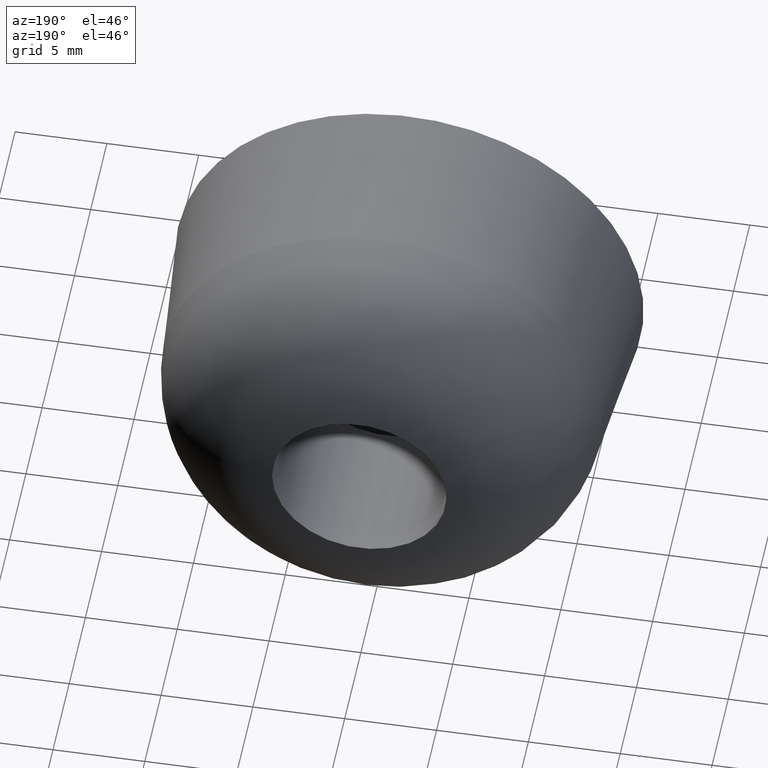
[diagram: clean part render]
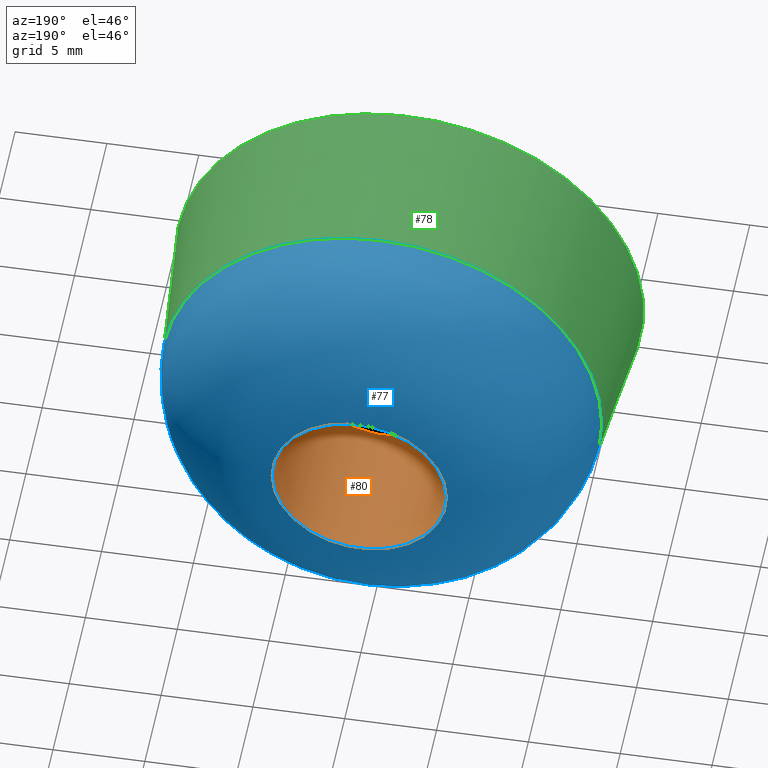
[diagram: same view with three faces highlighted in distinct colors, each labeled with its STEP entity id]
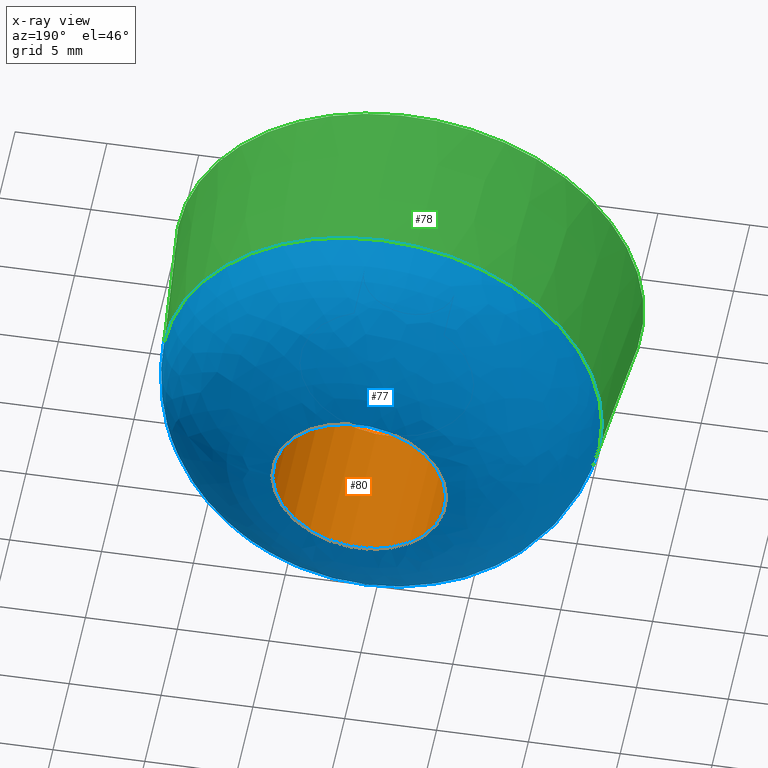
[diagram: x-ray of the same camera — body ghosted, the three highlighted faces saturated]
A machine part, auxiliary view with three faces highlighted in distinct colors.
The next image is the same camera in x-ray (body ghosted, the three faces saturated) — at least one of them is partly hidden behind the body in this view.
Their STEP definitions:

[orange] entity #80 — the highlighted cylindrical surface (bore or boss wall) has radius 4.75 mm, axis along (0, -1, 0).
#15=CYLINDRICAL_SURFACE('',#92,4.75);
#21=FACE_BOUND('',#37,.T.);
#28=FACE_OUTER_BOUND('',#36,.T.);
#36=EDGE_LOOP('',(#70));
#37=EDGE_LOOP('',(#71));
#44=CIRCLE('',#86,4.75);
#46=CIRCLE('',#90,4.75);
#50=VERTEX_POINT('',#150);
#52=VERTEX_POINT('',#159);
#57=EDGE_CURVE('',#50,#50,#44,.T.);
#59=EDGE_CURVE('',#52,#52,#46,.T.);
#70=ORIENTED_EDGE('',*,*,#57,.F.);
#71=ORIENTED_EDGE('',*,*,#59,.T.);
#80=ADVANCED_FACE('',(#28,#21),#15,.F.);
#86=AXIS2_PLACEMENT_3D('',#154,#100,#101);
#90=AXIS2_PLACEMENT_3D('',#160,#108,#109);
#92=AXIS2_PLACEMENT_3D('',#163,#112,#113);
#100=DIRECTION('center_axis',(5.0368537706867E-17,-1.,0.));
#101=DIRECTION('ref_axis',(1.,0.,0.));
#108=DIRECTION('center_axis',(5.0368537706867E-17,-1.,0.));
#109=DIRECTION('ref_axis',(1.,5.0368537706867E-17,0.));
#112=DIRECTION('center_axis',(5.0368537706867E-17,-1.,0.));
#113=DIRECTION('ref_axis',(1.,0.,0.));
#150=CARTESIAN_POINT('',(-4.75,15.5,-1.23259516440783E-31));
#154=CARTESIAN_POINT('Origin',(-7.80712334456438E-16,15.5,0.));
#159=CARTESIAN_POINT('',(4.75,7.,0.));
#160=CARTESIAN_POINT('Origin',(-3.52579763948069E-16,7.,0.));
#163=CARTESIAN_POINT('Origin',(-5.66646049202253E-16,11.25,0.));

[blue] entity #77 — the highlighted face is a freeform B-spline surface patch.
#25=FACE_OUTER_BOUND('',#31,.T.);
#31=EDGE_LOOP('',(#62,#63,#64,#65));
#42=(
BOUNDED_CURVE()
B_SPLINE_CURVE(2,(#151,#152,#153),.UNSPECIFIED.,.F.,.F.)
B_SPLINE_CURVE_WITH_KNOTS((3,3),(0.0868982610506254,1.54070594691769),
 .UNSPECIFIED.)
CURVE()
GEOMETRIC_REPRESENTATION_ITEM()
RATIONAL_B_SPLINE_CURVE((1.,0.747235560490562,1.))
REPRESENTATION_ITEM('')
);
#43=CIRCLE('',#85,11.9960566161482);
#44=CIRCLE('',#86,4.75);
#49=VERTEX_POINT('',#148);
#50=VERTEX_POINT('',#150);
#55=EDGE_CURVE('',#49,#49,#43,.T.);
#56=EDGE_CURVE('',#49,#50,#42,.T.);
#57=EDGE_CURVE('',#50,#50,#44,.T.);
#62=ORIENTED_EDGE('',*,*,#55,.T.);
#63=ORIENTED_EDGE('',*,*,#56,.T.);
#64=ORIENTED_EDGE('',*,*,#57,.T.);
#65=ORIENTED_EDGE('',*,*,#56,.F.);
#76=(
BOUNDED_SURFACE()
B_SPLINE_SURFACE(2,2,((#121,#122,#123,#124,#125,#126,#127,#128,#129),(#130,
#131,#132,#133,#134,#135,#136,#137,#138),(#139,#140,#141,#142,#143,#144,
#145,#146,#147)),.UNSPECIFIED.,.F.,.T.,.F.)
B_SPLINE_SURFACE_WITH_KNOTS((3,3),(3,2,2,2,3),(-1.54070594691769,-0.0868982610506254),
(-3.14159265358979,-1.5707963267949,0.,1.5707963267949,3.14159265358979),
 .UNSPECIFIED.)
GEOMETRIC_REPRESENTATION_ITEM()
RATIONAL_B_SPLINE_SURFACE(((1.,0.707106781186548,1.,0.707106781186548,1.,
0.707106781186548,1.,0.707106781186548,1.),(0.747235560490562,0.528375331966607,
0.747235560490562,0.528375331966607,0.747235560490562,0.528375331966607,
0.747235560490562,0.528375331966607,0.747235560490562),(1.,0.707106781186548,
1.,0.707106781186548,1.,0.707106781186548,1.,0.707106781186548,1.)))
REPRESENTATION_ITEM('')
SURFACE()
);
#77=ADVANCED_FACE('',(#25),#76,.T.);
#85=AXIS2_PLACEMENT_3D('',#149,#98,#99);
#86=AXIS2_PLACEMENT_3D('',#154,#100,#101);
#98=DIRECTION('center_axis',(-5.06627560966057E-49,1.,4.13692798053113E-33));
#99=DIRECTION('ref_axis',(1.,0.,1.22464679914735E-16));
#100=DIRECTION('center_axis',(5.0368537706867E-17,-1.,0.));
#101=DIRECTION('ref_axis',(1.,0.,0.));
#121=CARTESIAN_POINT('Ctrl Pts',(-4.75,15.5,-5.81707229594993E-16));
#122=CARTESIAN_POINT('Ctrl Pts',(-4.75,15.5,4.75));
#123=CARTESIAN_POINT('Ctrl Pts',(-9.84826537972101E-16,15.5,4.75));
#124=CARTESIAN_POINT('Ctrl Pts',(4.75,15.5,4.75));
#125=CARTESIAN_POINT('Ctrl Pts',(4.75,15.5,5.81707229594993E-16));
#126=CARTESIAN_POINT('Ctrl Pts',(4.75,15.5,-4.75));
#127=CARTESIAN_POINT('Ctrl Pts',(1.78587921217885E-16,15.5,-4.75));
#128=CARTESIAN_POINT('Ctrl Pts',(-4.75,15.5,-4.75));
#129=CARTESIAN_POINT('Ctrl Pts',(-4.75,15.5,-5.81707229594993E-16));
#130=CARTESIAN_POINT('Ctrl Pts',(-11.4171589277173,15.2993220848411,-1.39819871361856E-15));
#131=CARTESIAN_POINT('Ctrl Pts',(-11.4171589277173,15.2993220848411,11.4171589277173));
#132=CARTESIAN_POINT('Ctrl Pts',(-1.80131802199567E-15,15.2993220848411,
11.4171589277173));
#133=CARTESIAN_POINT('Ctrl Pts',(11.4171589277173,15.2993220848411,11.4171589277173));
#134=CARTESIAN_POINT('Ctrl Pts',(11.4171589277173,15.2993220848411,1.39819871361856E-15));
#135=CARTESIAN_POINT('Ctrl Pts',(11.4171589277173,15.2993220848411,-11.4171589277173));
#136=CARTESIAN_POINT('Ctrl Pts',(9.95079405241451E-16,15.2993220848411,
-11.4171589277173));
#137=CARTESIAN_POINT('Ctrl Pts',(-11.4171589277173,15.2993220848411,-11.4171589277173));
#138=CARTESIAN_POINT('Ctrl Pts',(-11.4171589277173,15.2993220848411,-1.39819871361856E-15));
#139=CARTESIAN_POINT('Ctrl Pts',(-11.9960566161482,8.65431213305011,-1.46909323373563E-15));
#140=CARTESIAN_POINT('Ctrl Pts',(-11.9960566161482,8.65431213305011,11.9960566161482));
#141=CARTESIAN_POINT('Ctrl Pts',(-1.87221254211274E-15,8.65431213305011,
11.9960566161482));
#142=CARTESIAN_POINT('Ctrl Pts',(11.9960566161482,8.65431213305011,11.9960566161482));
#143=CARTESIAN_POINT('Ctrl Pts',(11.9960566161482,8.65431213305011,1.46909323373563E-15));
#144=CARTESIAN_POINT('Ctrl Pts',(11.9960566161482,8.65431213305011,-11.9960566161482));
#145=CARTESIAN_POINT('Ctrl Pts',(1.06597392535852E-15,8.65431213305011,
-11.9960566161482));
#146=CARTESIAN_POINT('Ctrl Pts',(-11.9960566161482,8.65431213305011,-11.9960566161482));
#147=CARTESIAN_POINT('Ctrl Pts',(-11.9960566161482,8.65431213305011,-1.46909323373563E-15));
#148=CARTESIAN_POINT('',(-11.9960566161482,8.65431213305011,-2.46519032881566E-31));
#149=CARTESIAN_POINT('Origin',(-4.03119308377108E-16,8.65431213305011,2.69279684597884E-33));
#150=CARTESIAN_POINT('',(-4.75,15.5,-1.23259516440783E-31));
#151=CARTESIAN_POINT('Ctrl Pts',(-11.9960566161482,8.65431213305011,-1.46909323373563E-15));
#152=CARTESIAN_POINT('Ctrl Pts',(-11.4171589277173,15.2993220848411,-1.39819871361856E-15));
#153=CARTESIAN_POINT('Ctrl Pts',(-4.75,15.5,-5.81707229594993E-16));
#154=CARTESIAN_POINT('Origin',(-7.80712334456438E-16,15.5,0.));

[green] entity #78 — the highlighted conical surface has half-angle 4.979 deg.
#19=FACE_BOUND('',#33,.T.);
#24=CONICAL_SURFACE('',#87,12.3633973375646,4.97890360522689);
#26=FACE_OUTER_BOUND('',#32,.T.);
#32=EDGE_LOOP('',(#66));
#33=EDGE_LOOP('',(#67));
#43=CIRCLE('',#85,11.9960566161482);
#45=CIRCLE('',#88,12.75);
#49=VERTEX_POINT('',#148);
#51=VERTEX_POINT('',#156);
#55=EDGE_CURVE('',#49,#49,#43,.T.);
#58=EDGE_CURVE('',#51,#51,#45,.T.);
#66=ORIENTED_EDGE('',*,*,#58,.F.);
#67=ORIENTED_EDGE('',*,*,#55,.F.);
#78=ADVANCED_FACE('',(#26,#19),#24,.T.);
#85=AXIS2_PLACEMENT_3D('',#149,#98,#99);
#87=AXIS2_PLACEMENT_3D('',#155,#102,#103);
#88=AXIS2_PLACEMENT_3D('',#157,#104,#105);
#98=DIRECTION('center_axis',(-5.06627560966057E-49,1.,4.13692798053113E-33));
#99=DIRECTION('ref_axis',(1.,0.,1.22464679914735E-16));
#102=DIRECTION('center_axis',(5.0368537706867E-17,-1.,0.));
#103=DIRECTION('ref_axis',(1.,4.47159814096616E-17,0.));
#104=DIRECTION('center_axis',(5.0368537706867E-17,-1.,0.));
#105=DIRECTION('ref_axis',(1.,5.0368537706867E-17,0.));
#148=CARTESIAN_POINT('',(-11.9960566161482,8.65431213305011,-2.46519032881566E-31));
#149=CARTESIAN_POINT('Origin',(-4.03119308377108E-16,8.65431213305011,2.69279684597884E-33));
#155=CARTESIAN_POINT('Origin',(-2.23520831071542E-16,4.43770737146234,0.));
#156=CARTESIAN_POINT('',(12.75,2.67891487313483E-15,0.));
#157=CARTESIAN_POINT('Origin',(-9.24446373305873E-32,2.22044604925031E-15,
0.));